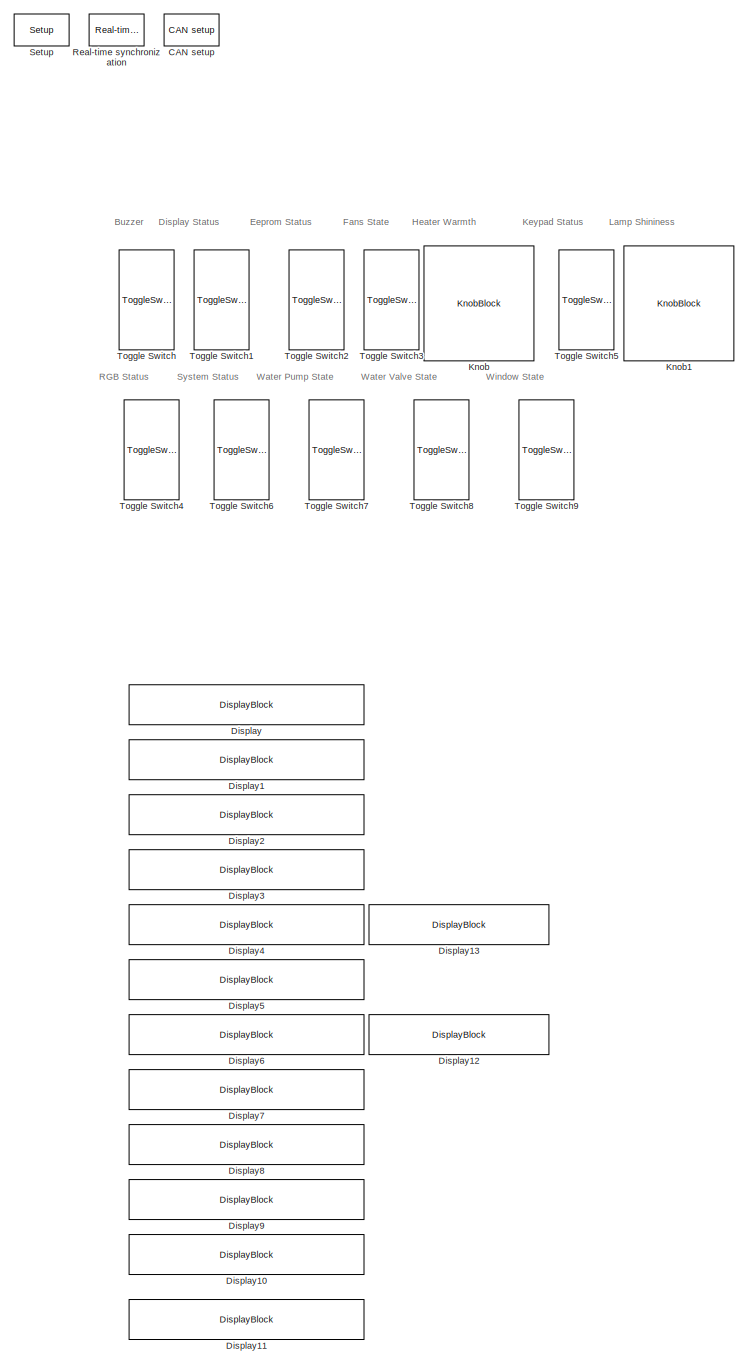
[diagram: root canvas - part 1/2, right side, full height]
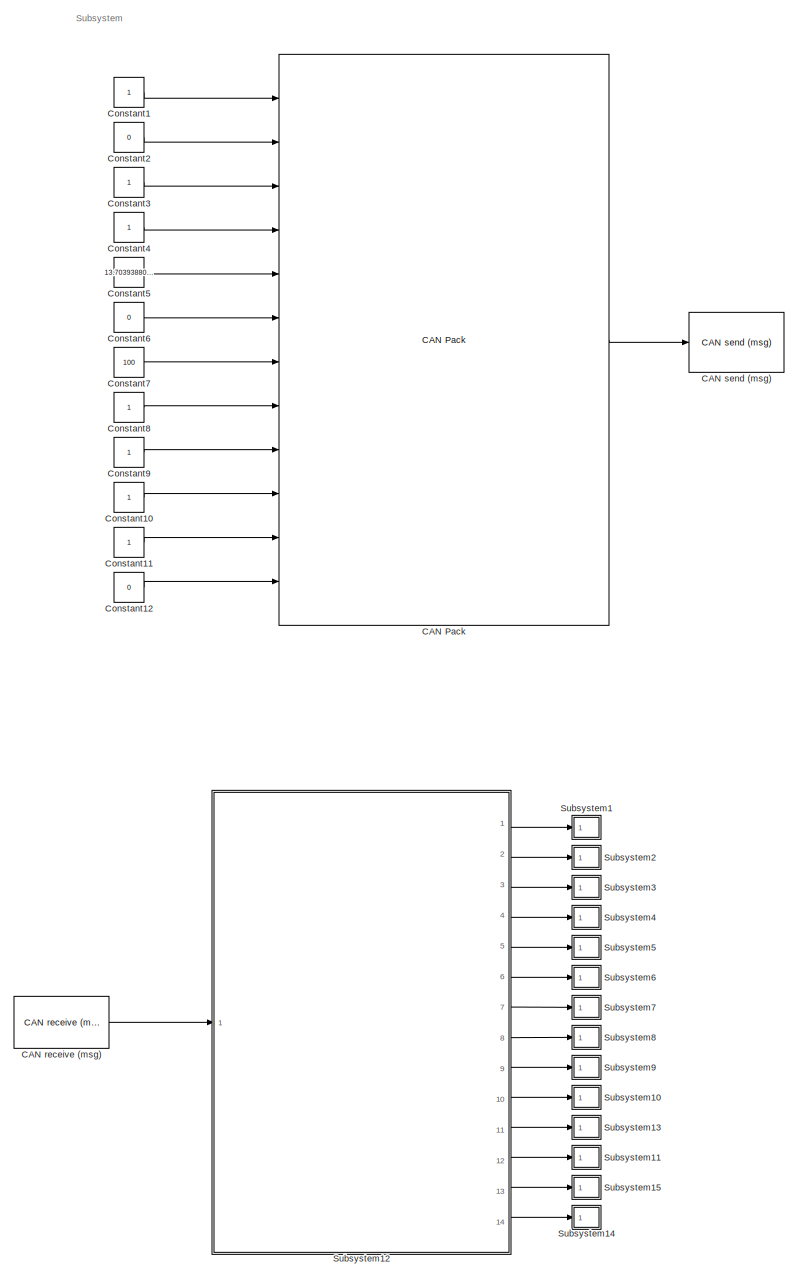
[diagram: root canvas - part 2/2, left side, full height]
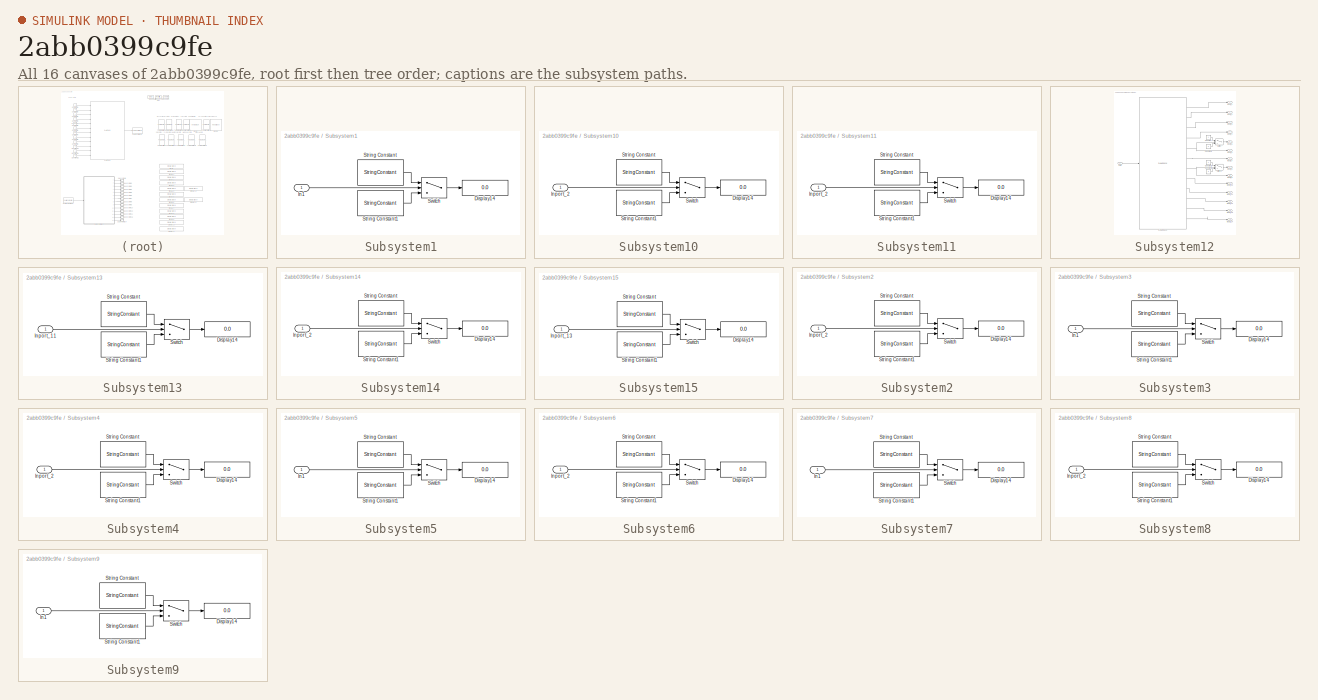
[diagram: thumbnail index - all 16 canvases of the model, root first then tree order]
MODEL slx_2abb0399c9fe
KIND model
CONFIG AbsTol = auto
CONFIG EnableMultiTasking = on
CONFIG FixedStep = auto
CONFIG MaxStep = auto
CONFIG MinStep = auto
CONFIG RelTol = 1e-3
CONFIG SampleTimeConstraint = Unconstrained
CONFIG SolverName = FixedStepDiscrete
CONFIG StartTime = 0.0
CONFIG StopTime = inf
BLOCK [Reference] CAN Pack  REF=canmsglib/CAN Pack
  Ports = [12, 1]
  SourceBlock = canmsglib/CAN Pack
  SourceProductBaseCode = ME,XP,VN
  SourceType = CAN Pack
BLOCK [Reference] CAN receive (msg)  REF=labkit_toolbox/CAN receive (msg)
  Ports = [0, 1]
  SourceBlock = labkit_toolbox/CAN receive (msg)
  SourceProductName = Lab kit toolbox
  SourceType = CAN receive (msg)
BLOCK [Reference] CAN send (msg)  REF=labkit_toolbox/CAN send (msg)
  Ports = [1]
  SourceBlock = labkit_toolbox/CAN send (msg)
  SourceProductName = Lab kit toolbox
  SourceType = CAN send (msg)
BLOCK [Reference] CAN setup  REF=labkit_toolbox/CAN setup
  Ports = []
  SourceBlock = labkit_toolbox/CAN setup
  SourceProductName = Lab kit toolbox
  SourceType = CAN send
BLOCK [Constant] Constant1
  OutDataTypeStr = uint8
  SampleTime = 0.1
  VectorParams1D = off
BLOCK [Constant] Constant10
BLOCK [Constant] Constant11
BLOCK [Constant] Constant12
  Value = 0
BLOCK [Constant] Constant2
  Value = 0
BLOCK [Constant] Constant3
BLOCK [Constant] Constant4
BLOCK [Constant] Constant5
  Value = 13.70393880208333
BLOCK [Constant] Constant6
  Value = 0
BLOCK [Constant] Constant7
  Value = 100
BLOCK [Constant] Constant8
BLOCK [Constant] Constant9
BLOCK [DisplayBlock] Display
  Format = short
  LabelPosition = Hide
  Transparency = 1
BLOCK [DisplayBlock] Display1
  Format = short
  LabelPosition = Hide
  Transparency = 1
BLOCK [DisplayBlock] Display10
  Format = short
  LabelPosition = Hide
  Transparency = 1
BLOCK [DisplayBlock] Display11
  Format = short
  LabelPosition = Hide
  Transparency = 1
BLOCK [DisplayBlock] Display12
  Format = short
  LabelPosition = Hide
  Transparency = 1
BLOCK [DisplayBlock] Display13
  Format = short
  LabelPosition = Hide
  Transparency = 1
BLOCK [DisplayBlock] Display2
  Format = short
  LabelPosition = Hide
  Transparency = 1
BLOCK [DisplayBlock] Display3
  Format = short
  LabelPosition = Hide
  Transparency = 1
BLOCK [DisplayBlock] Display4
  Format = short
  LabelPosition = Hide
  Transparency = 1
BLOCK [DisplayBlock] Display5
  Format = short
  LabelPosition = Hide
  Transparency = 1
BLOCK [DisplayBlock] Display6
  Format = short
  LabelPosition = Hide
  Transparency = 1
BLOCK [DisplayBlock] Display7
  Format = short
  LabelPosition = Hide
  Transparency = 1
BLOCK [DisplayBlock] Display8
  Format = short
  LabelPosition = Hide
  Transparency = 1
BLOCK [DisplayBlock] Display9
  Format = short
  LabelPosition = Hide
  Transparency = 1
BLOCK [KnobBlock] Knob
BLOCK [KnobBlock] Knob1
BLOCK [Reference] Real-time synchronization  REF=labkit_toolbox/Real-time
synchronization
  Ports = []
  SourceBlock = labkit_toolbox/Real-time\nsynchronization
  SourceProductName = Lab kit toolbox
BLOCK [Reference] Setup  REF=labkit_toolbox/Setup
  Ports = []
  SourceBlock = labkit_toolbox/Setup
  SourceProductName = Lab kit toolbox
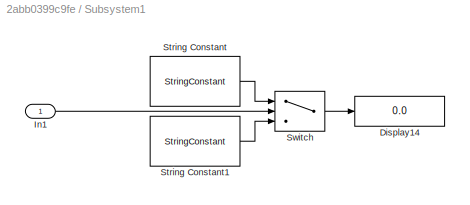
BLOCK [SubSystem] Subsystem1
  Ports = [1]
  RequestExecContextInheritance = off
BLOCK [Display] Subsystem1/Display14
  Decimation = 1
  Ports = [1]
BLOCK [Inport] Subsystem1/In1
BLOCK [StringConstant] Subsystem1/String Constant
  String = "Buzzer is ON"
BLOCK [StringConstant] Subsystem1/String Constant1
  String = "Buzzer is OFF"
BLOCK [Switch] Subsystem1/Switch
  Criteria = u2 > Threshold
  InputSameDT = off
  SaturateOnIntegerOverflow = off
BLOCK [SubSystem] Subsystem10
  Ports = [1]
  RequestExecContextInheritance = off
BLOCK [Display] Subsystem10/Display14
  Decimation = 1
  Ports = [1]
BLOCK [Inport] Subsystem10/Inport_2
BLOCK [StringConstant] Subsystem10/String Constant
  String = "RGB is ON"
BLOCK [StringConstant] Subsystem10/String Constant1
  String = "RGB is OFF"
BLOCK [Switch] Subsystem10/Switch
  Criteria = u2 > Threshold
  InputSameDT = off
  SaturateOnIntegerOverflow = off
BLOCK [SubSystem] Subsystem11
  Ports = [1]
  RequestExecContextInheritance = off
BLOCK [Display] Subsystem11/Display14
  Decimation = 1
  Ports = [1]
BLOCK [Inport] Subsystem11/Inport_2
BLOCK [StringConstant] Subsystem11/String Constant
  String = "Water Pump is ON"
BLOCK [StringConstant] Subsystem11/String Constant1
  String = "Water Pump is OFF"
BLOCK [Switch] Subsystem11/Switch
  Criteria = u2 > Threshold
  InputSameDT = off
  SaturateOnIntegerOverflow = off
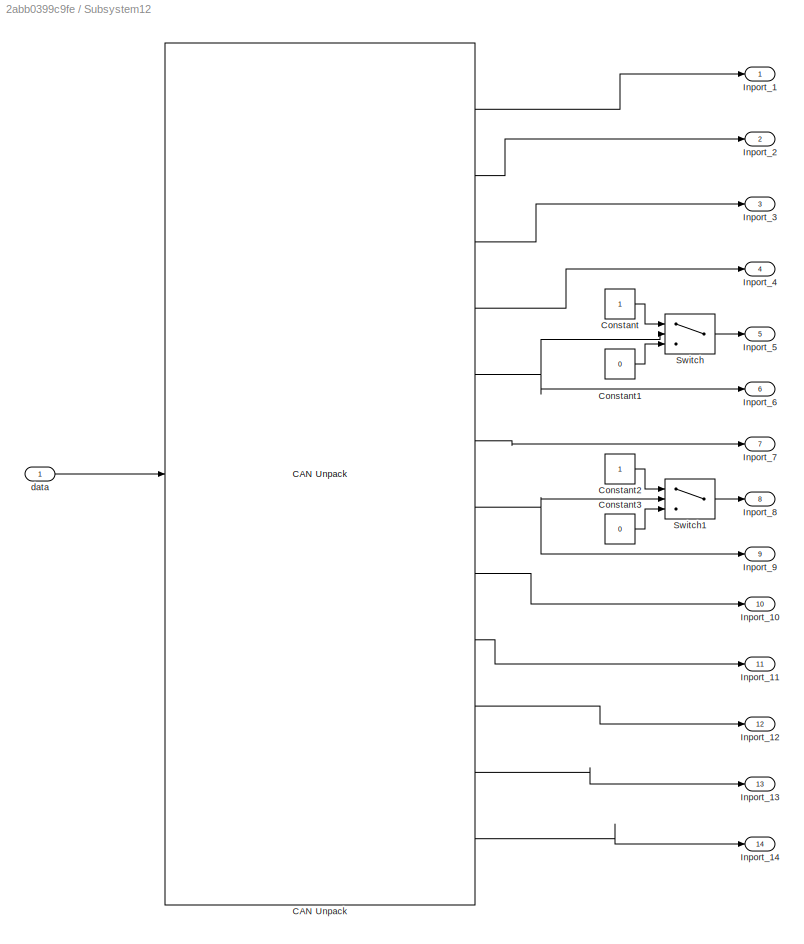
BLOCK [SubSystem] Subsystem12
  Ports = [1, 14]
  RequestExecContextInheritance = off
BLOCK [Reference] Subsystem12/CAN Unpack  REF=canmsglib/CAN Unpack
  Ports = [1, 12]
  SourceBlock = canmsglib/CAN Unpack
  SourceProductBaseCode = ME,XP,VN
  SourceType = CAN Unpack
BLOCK [Constant] Subsystem12/Constant
BLOCK [Constant] Subsystem12/Constant1
  Value = 0
BLOCK [Constant] Subsystem12/Constant2
BLOCK [Constant] Subsystem12/Constant3
  Value = 0
BLOCK [Outport] Subsystem12/Inport_1
BLOCK [Outport] Subsystem12/Inport_10
  Port = 10
BLOCK [Outport] Subsystem12/Inport_11
  Port = 11
BLOCK [Outport] Subsystem12/Inport_12
  Port = 12
BLOCK [Outport] Subsystem12/Inport_13
  Port = 13
BLOCK [Outport] Subsystem12/Inport_14
  Port = 14
BLOCK [Outport] Subsystem12/Inport_2
  Port = 2
BLOCK [Outport] Subsystem12/Inport_3
  Port = 3
BLOCK [Outport] Subsystem12/Inport_4
  Port = 4
BLOCK [Outport] Subsystem12/Inport_5
  Port = 5
BLOCK [Outport] Subsystem12/Inport_6
  Port = 6
BLOCK [Outport] Subsystem12/Inport_7
  Port = 7
BLOCK [Outport] Subsystem12/Inport_8
  Port = 8
BLOCK [Outport] Subsystem12/Inport_9
  Port = 9
BLOCK [Switch] Subsystem12/Switch
  Criteria = u2 > Threshold
  InputSameDT = off
  SaturateOnIntegerOverflow = off
BLOCK [Switch] Subsystem12/Switch1
  Criteria = u2 > Threshold
  InputSameDT = off
  SaturateOnIntegerOverflow = off
BLOCK [Inport] Subsystem12/data
BLOCK [SubSystem] Subsystem13
  Ports = [1]
  RequestExecContextInheritance = off
BLOCK [Display] Subsystem13/Display14
  Decimation = 1
  Ports = [1]
BLOCK [Inport] Subsystem13/Inport_11
BLOCK [StringConstant] Subsystem13/String Constant
  String = "System is ON"
BLOCK [StringConstant] Subsystem13/String Constant1
  String = "System is OFF"
BLOCK [Switch] Subsystem13/Switch
  Criteria = u2 > Threshold
  InputSameDT = off
  SaturateOnIntegerOverflow = off
BLOCK [SubSystem] Subsystem14
  Ports = [1]
  RequestExecContextInheritance = off
BLOCK [Display] Subsystem14/Display14
  Decimation = 1
  Ports = [1]
BLOCK [Inport] Subsystem14/Inport_2
BLOCK [StringConstant] Subsystem14/String Constant
  String = "Window is ON"
BLOCK [StringConstant] Subsystem14/String Constant1
  String = "Window is OFF"
BLOCK [Switch] Subsystem14/Switch
  Criteria = u2 > Threshold
  InputSameDT = off
  SaturateOnIntegerOverflow = off
BLOCK [SubSystem] Subsystem15
  Ports = [1]
  RequestExecContextInheritance = off
BLOCK [Display] Subsystem15/Display14
  Decimation = 1
  Ports = [1]
BLOCK [Inport] Subsystem15/Inport_13
BLOCK [StringConstant] Subsystem15/String Constant
  String = "Water Valve is ON"
BLOCK [StringConstant] Subsystem15/String Constant1
  String = "Water Valve is OFF"
BLOCK [Switch] Subsystem15/Switch
  Criteria = u2 > Threshold
  InputSameDT = off
  SaturateOnIntegerOverflow = off
BLOCK [SubSystem] Subsystem2
  Ports = [1]
  RequestExecContextInheritance = off
BLOCK [Display] Subsystem2/Display14
  Decimation = 1
  Ports = [1]
BLOCK [Inport] Subsystem2/Inport_2
BLOCK [StringConstant] Subsystem2/String Constant
  String = "Display is ON"
BLOCK [StringConstant] Subsystem2/String Constant1
  String = "Display is OFF"
BLOCK [Switch] Subsystem2/Switch
  Criteria = u2 > Threshold
  InputSameDT = off
  SaturateOnIntegerOverflow = off
BLOCK [SubSystem] Subsystem3
  Ports = [1]
  RequestExecContextInheritance = off
BLOCK [Display] Subsystem3/Display14
  Decimation = 1
  Ports = [1]
BLOCK [Inport] Subsystem3/In1
BLOCK [StringConstant] Subsystem3/String Constant
  String = "EEprom is ON"
BLOCK [StringConstant] Subsystem3/String Constant1
  String = "EEprom is OFF"
BLOCK [Switch] Subsystem3/Switch
  Criteria = u2 > Threshold
  InputSameDT = off
  SaturateOnIntegerOverflow = off
BLOCK [SubSystem] Subsystem4
  Ports = [1]
  RequestExecContextInheritance = off
BLOCK [Display] Subsystem4/Display14
  Decimation = 1
  Ports = [1]
BLOCK [Inport] Subsystem4/Inport_2
BLOCK [StringConstant] Subsystem4/String Constant
  String = "Fans are ON"
BLOCK [StringConstant] Subsystem4/String Constant1
  String = "Fans are OFF"
BLOCK [Switch] Subsystem4/Switch
  Criteria = u2 > Threshold
  InputSameDT = off
  SaturateOnIntegerOverflow = off
BLOCK [SubSystem] Subsystem5
  Ports = [1]
  RequestExecContextInheritance = off
BLOCK [Display] Subsystem5/Display14
  Decimation = 1
  Ports = [1]
BLOCK [Inport] Subsystem5/In1
BLOCK [StringConstant] Subsystem5/String Constant
  String = "Heater is ON and its value is"
BLOCK [StringConstant] Subsystem5/String Constant1
  String = "Buzzer is OFF"
BLOCK [Switch] Subsystem5/Switch
  Criteria = u2 > Threshold
  InputSameDT = off
  SaturateOnIntegerOverflow = off
BLOCK [SubSystem] Subsystem6
  Ports = [1]
  RequestExecContextInheritance = off
BLOCK [Display] Subsystem6/Display14
  Decimation = 1
  Ports = [1]
BLOCK [Inport] Subsystem6/Inport_2
BLOCK [StringConstant] Subsystem6/String Constant
  String = "Display is ON"
BLOCK [StringConstant] Subsystem6/String Constant1
  String = "Display is OFF"
BLOCK [Switch] Subsystem6/Switch
  Criteria = u2 > Threshold
  InputSameDT = off
  SaturateOnIntegerOverflow = off
BLOCK [SubSystem] Subsystem7
  Ports = [1]
  RequestExecContextInheritance = off
BLOCK [Display] Subsystem7/Display14
  Decimation = 1
  Ports = [1]
BLOCK [Inport] Subsystem7/In1
BLOCK [StringConstant] Subsystem7/String Constant
  String = "Keypad is ON"
BLOCK [StringConstant] Subsystem7/String Constant1
  String = "Keypad is OFF"
BLOCK [Switch] Subsystem7/Switch
  Criteria = u2 > Threshold
  InputSameDT = off
  SaturateOnIntegerOverflow = off
BLOCK [SubSystem] Subsystem8
  Ports = [1]
  RequestExecContextInheritance = off
BLOCK [Display] Subsystem8/Display14
  Decimation = 1
  Ports = [1]
BLOCK [Inport] Subsystem8/Inport_2
BLOCK [StringConstant] Subsystem8/String Constant
  String = "Lamp is ON and its value is"
BLOCK [StringConstant] Subsystem8/String Constant1
  String = "Lamp is OFF"
BLOCK [Switch] Subsystem8/Switch
  Criteria = u2 > Threshold
  InputSameDT = off
  SaturateOnIntegerOverflow = off
BLOCK [SubSystem] Subsystem9
  Ports = [1]
  RequestExecContextInheritance = off
BLOCK [Display] Subsystem9/Display14
  Decimation = 1
  Ports = [1]
BLOCK [Inport] Subsystem9/In1
BLOCK [StringConstant] Subsystem9/String Constant
  String = "Buzzer is ON"
BLOCK [StringConstant] Subsystem9/String Constant1
  String = "Buzzer is OFF"
BLOCK [Switch] Subsystem9/Switch
  Criteria = u2 > Threshold
  InputSameDT = off
  SaturateOnIntegerOverflow = off
BLOCK [ToggleSwitchBlock] Toggle Switch
BLOCK [ToggleSwitchBlock] Toggle Switch1
BLOCK [ToggleSwitchBlock] Toggle Switch2
BLOCK [ToggleSwitchBlock] Toggle Switch3
BLOCK [ToggleSwitchBlock] Toggle Switch4
BLOCK [ToggleSwitchBlock] Toggle Switch5
BLOCK [ToggleSwitchBlock] Toggle Switch6
BLOCK [ToggleSwitchBlock] Toggle Switch7
BLOCK [ToggleSwitchBlock] Toggle Switch8
BLOCK [ToggleSwitchBlock] Toggle Switch9
ANNOTATION (root): Buzzer
ANNOTATION (root): Display Status
ANNOTATION (root): Eeprom Status
ANNOTATION (root): Fans State
ANNOTATION (root): Heater Warmth
ANNOTATION (root): Keypad Status
ANNOTATION (root): Lamp Shininess
ANNOTATION (root): RGB Status
ANNOTATION (root): Subsystem
ANNOTATION (root): System Status
ANNOTATION (root): Water Pump State
ANNOTATION (root): Water Valve State
ANNOTATION (root): Window State
LINE CAN Pack:1 -> CAN send (msg):1
LINE CAN receive (msg):1 -> Subsystem12:1
LINE Constant10:1 -> CAN Pack:10
LINE Constant11:1 -> CAN Pack:11
LINE Constant12:1 -> CAN Pack:12
LINE Constant1:1 -> CAN Pack:1
LINE Constant2:1 -> CAN Pack:2
LINE Constant3:1 -> CAN Pack:3
LINE Constant4:1 -> CAN Pack:4
LINE Constant5:1 -> CAN Pack:5
LINE Constant6:1 -> CAN Pack:6
LINE Constant7:1 -> CAN Pack:7
LINE Constant8:1 -> CAN Pack:8
LINE Constant9:1 -> CAN Pack:9
LINE Subsystem1/In1:1 -> Subsystem1/Switch:2
LINE Subsystem1/String Constant1:1 -> Subsystem1/Switch:3
LINE Subsystem1/String Constant:1 -> Subsystem1/Switch:1
LINE Subsystem1/Switch:1 -> Subsystem1/Display14:1
LINE Subsystem10/Inport_2:1 -> Subsystem10/Switch:2
LINE Subsystem10/String Constant1:1 -> Subsystem10/Switch:3
LINE Subsystem10/String Constant:1 -> Subsystem10/Switch:1
LINE Subsystem10/Switch:1 -> Subsystem10/Display14:1
LINE Subsystem11/Inport_2:1 -> Subsystem11/Switch:2
LINE Subsystem11/String Constant1:1 -> Subsystem11/Switch:3
LINE Subsystem11/String Constant:1 -> Subsystem11/Switch:1
LINE Subsystem11/Switch:1 -> Subsystem11/Display14:1
LINE Subsystem12/CAN Unpack:1 -> Subsystem12/Inport_1:1
LINE Subsystem12/CAN Unpack:10 -> Subsystem12/Inport_12:1
LINE Subsystem12/CAN Unpack:11 -> Subsystem12/Inport_13:1
LINE Subsystem12/CAN Unpack:12 -> Subsystem12/Inport_14:1
LINE Subsystem12/CAN Unpack:2 -> Subsystem12/Inport_2:1
LINE Subsystem12/CAN Unpack:3 -> Subsystem12/Inport_3:1
LINE Subsystem12/CAN Unpack:4 -> Subsystem12/Inport_4:1
NET Subsystem12/CAN Unpack:5 -> Subsystem12/Inport_6:1, Subsystem12/Switch:2
LINE Subsystem12/CAN Unpack:6 -> Subsystem12/Inport_7:1
NET Subsystem12/CAN Unpack:7 -> Subsystem12/Inport_9:1, Subsystem12/Switch1:2
LINE Subsystem12/CAN Unpack:8 -> Subsystem12/Inport_10:1
LINE Subsystem12/CAN Unpack:9 -> Subsystem12/Inport_11:1
LINE Subsystem12/Constant1:1 -> Subsystem12/Switch:3
LINE Subsystem12/Constant2:1 -> Subsystem12/Switch1:1
LINE Subsystem12/Constant3:1 -> Subsystem12/Switch1:3
LINE Subsystem12/Constant:1 -> Subsystem12/Switch:1
LINE Subsystem12/Switch1:1 -> Subsystem12/Inport_8:1
LINE Subsystem12/Switch:1 -> Subsystem12/Inport_5:1
LINE Subsystem12/data:1 -> Subsystem12/CAN Unpack:1
LINE Subsystem12:1 -> Subsystem1:1
LINE Subsystem12:10 -> Subsystem10:1
LINE Subsystem12:11 -> Subsystem13:1
LINE Subsystem12:12 -> Subsystem11:1
LINE Subsystem12:13 -> Subsystem15:1
LINE Subsystem12:14 -> Subsystem14:1
LINE Subsystem12:2 -> Subsystem2:1
LINE Subsystem12:3 -> Subsystem3:1
LINE Subsystem12:4 -> Subsystem4:1
LINE Subsystem12:5 -> Subsystem5:1
LINE Subsystem12:6 -> Subsystem6:1
LINE Subsystem12:7 -> Subsystem7:1
LINE Subsystem12:8 -> Subsystem8:1
LINE Subsystem12:9 -> Subsystem9:1
LINE Subsystem13/Inport_11:1 -> Subsystem13/Switch:2
LINE Subsystem13/String Constant1:1 -> Subsystem13/Switch:3
LINE Subsystem13/String Constant:1 -> Subsystem13/Switch:1
LINE Subsystem13/Switch:1 -> Subsystem13/Display14:1
LINE Subsystem14/Inport_2:1 -> Subsystem14/Switch:2
LINE Subsystem14/String Constant1:1 -> Subsystem14/Switch:3
LINE Subsystem14/String Constant:1 -> Subsystem14/Switch:1
LINE Subsystem14/Switch:1 -> Subsystem14/Display14:1
LINE Subsystem15/Inport_13:1 -> Subsystem15/Switch:2
LINE Subsystem15/String Constant1:1 -> Subsystem15/Switch:3
LINE Subsystem15/String Constant:1 -> Subsystem15/Switch:1
LINE Subsystem15/Switch:1 -> Subsystem15/Display14:1
LINE Subsystem2/Inport_2:1 -> Subsystem2/Switch:2
LINE Subsystem2/String Constant1:1 -> Subsystem2/Switch:3
LINE Subsystem2/String Constant:1 -> Subsystem2/Switch:1
LINE Subsystem2/Switch:1 -> Subsystem2/Display14:1
LINE Subsystem3/In1:1 -> Subsystem3/Switch:2
LINE Subsystem3/String Constant1:1 -> Subsystem3/Switch:3
LINE Subsystem3/String Constant:1 -> Subsystem3/Switch:1
LINE Subsystem3/Switch:1 -> Subsystem3/Display14:1
LINE Subsystem4/Inport_2:1 -> Subsystem4/Switch:2
LINE Subsystem4/String Constant1:1 -> Subsystem4/Switch:3
LINE Subsystem4/String Constant:1 -> Subsystem4/Switch:1
LINE Subsystem4/Switch:1 -> Subsystem4/Display14:1
LINE Subsystem5/In1:1 -> Subsystem5/Switch:2
LINE Subsystem5/String Constant1:1 -> Subsystem5/Switch:3
LINE Subsystem5/String Constant:1 -> Subsystem5/Switch:1
LINE Subsystem5/Switch:1 -> Subsystem5/Display14:1
LINE Subsystem6/Inport_2:1 -> Subsystem6/Switch:2
LINE Subsystem6/String Constant1:1 -> Subsystem6/Switch:3
LINE Subsystem6/String Constant:1 -> Subsystem6/Switch:1
LINE Subsystem6/Switch:1 -> Subsystem6/Display14:1
LINE Subsystem7/In1:1 -> Subsystem7/Switch:2
LINE Subsystem7/String Constant1:1 -> Subsystem7/Switch:3
LINE Subsystem7/String Constant:1 -> Subsystem7/Switch:1
LINE Subsystem7/Switch:1 -> Subsystem7/Display14:1
LINE Subsystem8/Inport_2:1 -> Subsystem8/Switch:2
LINE Subsystem8/String Constant1:1 -> Subsystem8/Switch:3
LINE Subsystem8/String Constant:1 -> Subsystem8/Switch:1
LINE Subsystem8/Switch:1 -> Subsystem8/Display14:1
LINE Subsystem9/In1:1 -> Subsystem9/Switch:2
LINE Subsystem9/String Constant1:1 -> Subsystem9/Switch:3
LINE Subsystem9/String Constant:1 -> Subsystem9/Switch:1
LINE Subsystem9/Switch:1 -> Subsystem9/Display14:1
note: NET lines group one-source signal fan-out (src -> all destinations, sorted); 1:1 wires keep LINE
CHART Test Assessment states=6 transitions=22
  STATE_LABEL 'Assessments\n'
  STATE_LABEL 'step_1_2\nassert(Input1 == 1)\nassert(Input2 == 1)\nassert(Input3 == 1)\nassert(Input4 == 1)\nassert(Input5 == 1)\nassert(Input6 == 40)\nassert(Input7 == 1)\nassert(Input8 == 1)\nassert(Input9 == 100)\nassert(Input10 == 1)\nassert(Input11 == 1)\nassert(Input12 == 1)\nassert(Input13 == 1)\nassert(Input14 == 1)\n'
  STATE_LABEL 'step_1_3\nassert(Input1 == 0)\nassert(Input2 == 0)\nassert(Input3 == 0)\nassert(Input4 == 0)\nassert(Input5 == 0)\nassert(Input6 == 0)\nassert(Input7 == 0)\nassert(Input8 == 0)\nassert(Input9 == 0)\nassert(Input10 == 0)\nassert(Input11 == 0)\nassert(Input12 == 0)\nassert(Input13 == 0)\nassert(Input14 == 0)\n'
  STATE_LABEL 'step_1_4\nassert(Input1 == 1)\nassert(Input2 == 0)\nassert(Input3 == 1)\nassert(Input4 == 0)\nassert(Input5 == 1)\nassert(Input6 == 65)\nassert(Input7 == 1)\nassert(Input8 == 0)\nassert(Input9 == 0)\nassert(Input10 == 1)\nassert(Input11 == 0)\nassert(Input12 == 1)\nassert(Input13 == 0)\nassert(Input14 == 1)'
  STATE_LABEL 'step_1_5\nassert(Input1 == 0)\nassert(Input2 == 1)\nassert(Input3 == 0)\nassert(Input4 == 1)\nassert(Input5 == 0)\nassert(Input6 == 0)\nassert(Input7 == 0)\nassert(Input8 == 1)\nassert(Input9 == 45)\nassert(Input10 == 0)\nassert(Input11 == 1)\nassert(Input12 == 0)\nassert(Input13 == 1)\nassert(Input14 == 0)'
  STATE_LABEL 'Assessments_1'
  STATE_LABEL '[data == 1 && data1 == 1 && data2 == 1 && data3 == 1 && data4 == 40 && data5 == 1 && data6 == 100 && data7 == 1 && data8 == 1 && data9 == 1 && data10 == 1 && data11 == 1\n]'
  STATE_LABEL '[~in(Assessments.step_1_2)]'
  STATE_LABEL '[data == 0 && data1 == 0 && data2 == 0 && data3 == 0 && data4 == 0 && data5 == 0 && data6 == 0 && data7 == 0 && data8 == 0 && data9 == 0 && data10 == 0 && data11 == 0\n]'
  STATE_LABEL '[~in(Assessments.step_1_3)]'
  STATE_LABEL '[data == 1 && data1 == 0 && data2 == 1 && data3 == 0 && data4 == 65 && data5 == 1 && data6 == 0 && data7 == 1 && data8 == 0 && data9 == 1 && data10 == 0 && data11 == 1\n]'
  STATE_LABEL '[~in(Assessments.step_1_4)]'
  STATE_LABEL '[data == 0 && data1 == 1 && data2 == 0 && data3 == 1 && data4 == 0 && data5 == 0 && data6 == 45 && data7 == 0 && data8 == 1 && data9 == 0 && data10 == 1 && data11 == 0\n]'
  STATE_LABEL '[~in(Assessments.step_1_5)]'
  STATE_LABEL '[~in(Assessments.Assessments_1)]'
  STATE_LABEL 'step_1_2\nassert(Input1 == 1)\nassert(Input2 == 1)\nassert(Input3 == 1)\nassert(Input4 == 1)\nassert(Input5 == 1)\nassert(Input6 == 40)\nassert(Input7 == 1)\nassert(Input8 == 1)\nassert(Input9 == 100)\nassert(Input10 == 1)\nassert(Input11 == 1)\nassert(Input12 == 1)\nassert(Input13 == 1)\nassert(Input14 == 1)\n'
  STATE_LABEL 'step_1_3\nassert(Input1 == 0)\nassert(Input2 == 0)\nassert(Input3 == 0)\nassert(Input4 == 0)\nassert(Input5 == 0)\nassert(Input6 == 0)\nassert(Input7 == 0)\nassert(Input8 == 0)\nassert(Input9 == 0)\nassert(Input10 == 0)\nassert(Input11 == 0)\nassert(Input12 == 0)\nassert(Input13 == 0)\nassert(Input14 == 0)\n'
  STATE_LABEL 'step_1_4\nassert(Input1 == 1)\nassert(Input2 == 0)\nassert(Input3 == 1)\nassert(Input4 == 0)\nassert(Input5 == 1)\nassert(Input6 == 65)\nassert(Input7 == 1)\nassert(Input8 == 0)\nassert(Input9 == 0)\nassert(Input10 == 1)\nassert(Input11 == 0)\nassert(Input12 == 1)\nassert(Input13 == 0)\nassert(Input14 == 1)'
  STATE_LABEL 'step_1_5\nassert(Input1 == 0)\nassert(Input2 == 1)\nassert(Input3 == 0)\nassert(Input4 == 1)\nassert(Input5 == 0)\nassert(Input6 == 0)\nassert(Input7 == 0)\nassert(Input8 == 1)\nassert(Input9 == 45)\nassert(Input10 == 0)\nassert(Input11 == 1)\nassert(Input12 == 0)\nassert(Input13 == 1)\nassert(Input14 == 0)'
  STATE_LABEL 'Assessments_1'
CHART Test Sequence states=4 transitions=5
  STATE_LABEL 'step_1\ndata = 1\ndata1 = 1\ndata2 = 1\ndata3 = 1\ndata4 = 40\ndata5 = 1\ndata6 = 100\ndata7 = 1\ndata8 = 1\ndata9 = 1\ndata10 = 1\ndata11 = 1'
  STATE_LABEL 'step_2\ndata = 0\ndata1 = 0\ndata2 = 0\ndata3 = 0\ndata4 = 0\ndata5 = 0\ndata6 = 0\ndata7 = 0\ndata8 = 0\ndata9 = 0\ndata10 = 0\ndata11 = 0'
  STATE_LABEL 'step_3\ndata = 1\ndata1 = 0\ndata2 = 1\ndata3 = 0\ndata4 = 65\ndata5 = 1\ndata6 = 0\ndata7 = 1\ndata8 = 0\ndata9 = 1\ndata10 = 0\ndata11 = 1'
  STATE_LABEL 'step_4\ndata = 0\ndata1 = 1\ndata2 = 0\ndata3 = 1\ndata4 = 0\ndata5 = 0\ndata6 = 45\ndata7 = 0\ndata8 = 1\ndata9 = 0\ndata10 = 1\ndata11 = 0'
